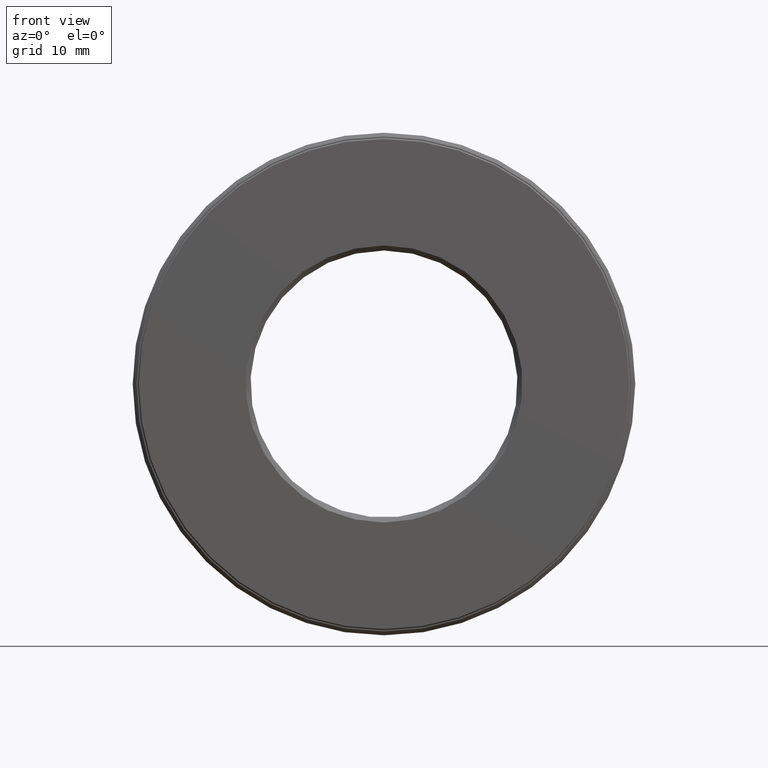
[diagram: clean part render]
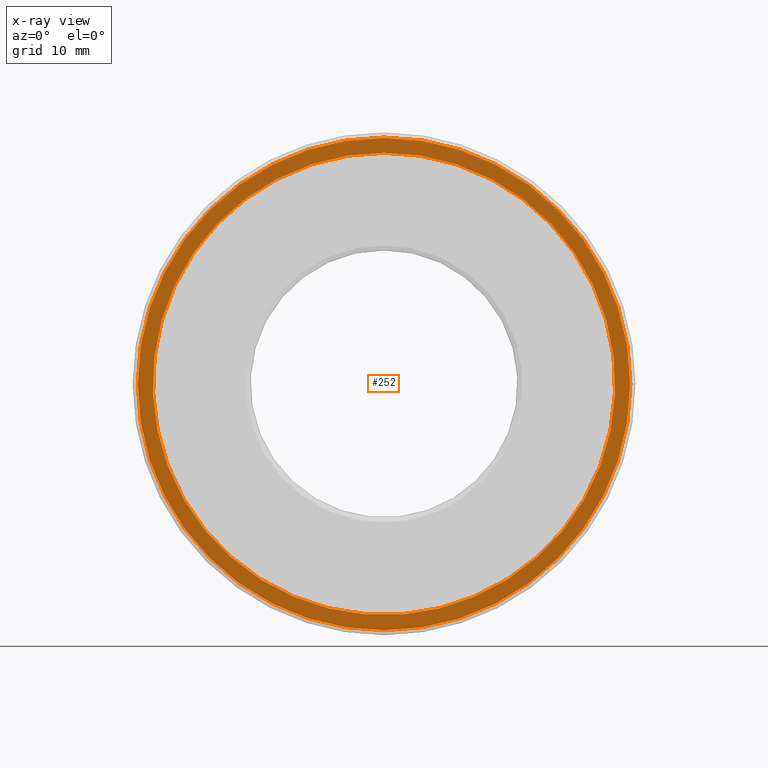
[diagram: x-ray — body ghosted, one internal face saturated and labeled with its STEP entity id]
A machine part, front view, then the same camera in x-ray: the body is ghosted and one INTERNAL B-rep face — a face not visible from any outside direction — is saturated and labeled: STEP entity #252.
In plain terms, the highlighted planar face has unit normal (-0, 1, 0).
Its self-contained STEP definition (entity closure, byte-faithful):
#77 = CARTESIAN_POINT ( 'NONE',  ( 0.0000000000000000000, 0.6524999999999997500, 0.9799999999999999800 ) ) ;
#93 = FACE_BOUND ( 'NONE', #216, .T. ) ;
#174 = CIRCLE ( 'NONE', #345, 0.9200000000000000400 ) ;
#195 = DIRECTION ( 'NONE',  ( -0.0000000000000000000, 1.000000000000000000, -0.0000000000000000000 ) ) ;
#197 = ORIENTED_EDGE ( 'NONE', *, *, #290, .F. ) ;
#198 = PLANE ( 'NONE',  #274 ) ;
#216 = EDGE_LOOP ( 'NONE', ( #566 ) ) ;
#219 = AXIS2_PLACEMENT_3D ( 'NONE', #423, #195, #560 ) ;
#234 = CARTESIAN_POINT ( 'NONE',  ( 0.0000000000000000000, 0.6524999999999997500, 0.0000000000000000000 ) ) ;
#252 = ADVANCED_FACE ( 'NONE', ( #573, #93 ), #198, .F. ) ;
#274 = AXIS2_PLACEMENT_3D ( 'NONE', #510, #335, #551 ) ;
#290 = EDGE_CURVE ( 'NONE', #554, #554, #447, .T. ) ;
#315 = EDGE_CURVE ( 'NONE', #381, #381, #174, .T. ) ;
#316 = EDGE_LOOP ( 'NONE', ( #197 ) ) ;
#327 = DIRECTION ( 'NONE',  ( 0.0000000000000000000, 0.0000000000000000000, 1.000000000000000000 ) ) ;
#335 = DIRECTION ( 'NONE',  ( -0.0000000000000000000, 1.000000000000000000, 0.0000000000000000000 ) ) ;
#345 = AXIS2_PLACEMENT_3D ( 'NONE', #234, #549, #327 ) ;
#381 = VERTEX_POINT ( 'NONE', #409 ) ;
#409 = CARTESIAN_POINT ( 'NONE',  ( 0.0000000000000000000, 0.6524999999999997500, 0.9200000000000000400 ) ) ;
#423 = CARTESIAN_POINT ( 'NONE',  ( 0.0000000000000000000, 0.6524999999999997500, 0.0000000000000000000 ) ) ;
#447 = CIRCLE ( 'NONE', #219, 0.9799999999999999800 ) ;
#510 = CARTESIAN_POINT ( 'NONE',  ( 0.0000000000000000000, 0.6524999999999997500, 0.0000000000000000000 ) ) ;
#549 = DIRECTION ( 'NONE',  ( -0.0000000000000000000, 1.000000000000000000, -0.0000000000000000000 ) ) ;
#551 = DIRECTION ( 'NONE',  ( 0.0000000000000000000, 0.0000000000000000000, 1.000000000000000000 ) ) ;
#554 = VERTEX_POINT ( 'NONE', #77 ) ;
#560 = DIRECTION ( 'NONE',  ( 0.0000000000000000000, 0.0000000000000000000, 1.000000000000000000 ) ) ;
#566 = ORIENTED_EDGE ( 'NONE', *, *, #315, .T. ) ;
#573 = FACE_OUTER_BOUND ( 'NONE', #316, .T. ) ;